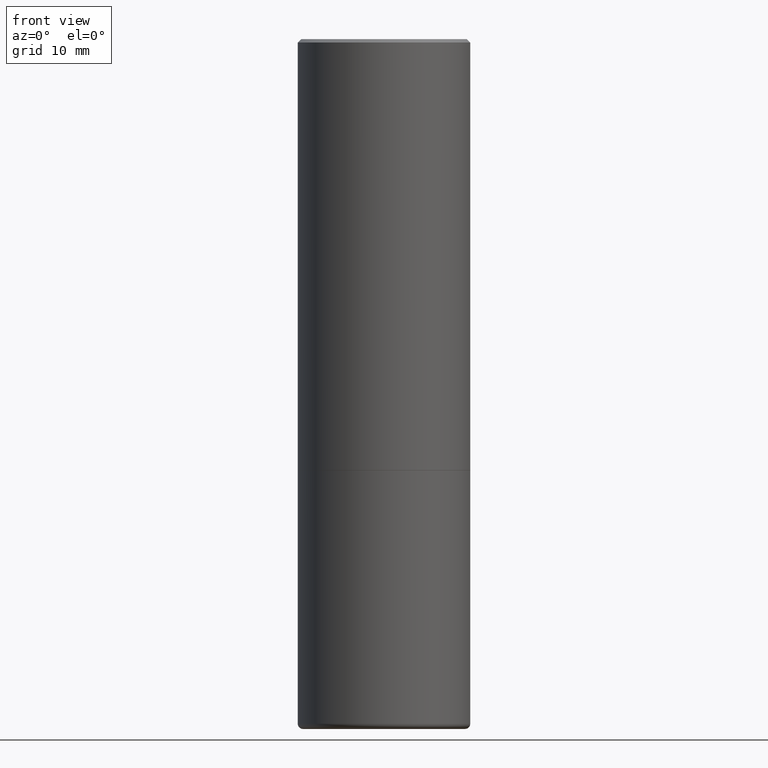
[diagram: clean part render]
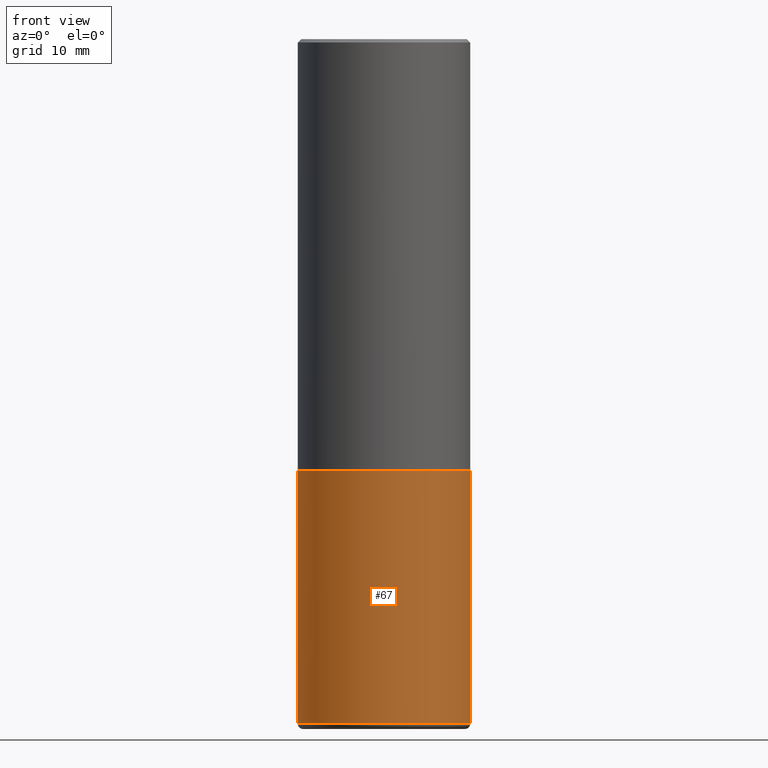
[diagram: same view with one face highlighted and labeled with its STEP entity id]
A machine part, front view. The second image highlights one B-rep face of the part: STEP entity #67.
In plain terms, the highlighted cylindrical surface (partial cylindrical patch) has radius 12.7 mm, axis along (-0, 0, 1).
Its self-contained STEP definition (entity closure, byte-faithful):
#14 = DIRECTION ( 'NONE',  ( -2.445468806185136597E-29, 3.491481338843145583E-15, 1.000000000000000000 ) ) ;
#20 = EDGE_CURVE ( 'NONE', #441, #374, #270, .T. ) ;
#40 = AXIS2_PLACEMENT_3D ( 'NONE', #65, #308, #78 ) ;
#45 = VERTEX_POINT ( 'NONE', #98 ) ;
#65 = CARTESIAN_POINT ( 'NONE',  ( 6.113672015462842613E-29, -8.728703347107864943E-15, -2.500000000000000000 ) ) ;
#67 = ADVANCED_FACE ( 'NONE', ( #296 ), #121, .T. ) ;
#78 = DIRECTION ( 'NONE',  ( 1.000000000000000000, -6.982962677686269077E-15, 0.000000000000000000 ) ) ;
#82 = CIRCLE ( 'NONE', #302, 0.5000000000000000000 ) ;
#97 = ORIENTED_EDGE ( 'NONE', *, *, #287, .T. ) ;
#98 = CARTESIAN_POINT ( 'NONE',  ( -0.5000000000000000000, -1.030846723640678645E-14, -3.970000000000000195 ) ) ;
#104 = CARTESIAN_POINT ( 'NONE',  ( -0.5000000000000000000, 3.552713678800500929E-15, -2.459467545127452891E-29 ) ) ;
#107 = DIRECTION ( 'NONE',  ( -2.445468806185136877E-29, 3.491481338843145188E-15, 1.000000000000000000 ) ) ;
#121 = CYLINDRICAL_SURFACE ( 'NONE', #179, 0.5000000000000000000 ) ;
#141 = LINE ( 'NONE', #349, #388 ) ;
#179 = AXIS2_PLACEMENT_3D ( 'NONE', #427, #14, #194 ) ;
#188 = ORIENTED_EDGE ( 'NONE', *, *, #371, .F. ) ;
#192 = VERTEX_POINT ( 'NONE', #391 ) ;
#194 = DIRECTION ( 'NONE',  ( 1.000000000000000000, -6.982962677686266711E-15, 4.876176775795935793E-29 ) ) ;
#219 = ORIENTED_EDGE ( 'NONE', *, *, #20, .F. ) ;
#241 = DIRECTION ( 'NONE',  ( -2.445468806185136877E-29, 3.491481338843145188E-15, 1.000000000000000000 ) ) ;
#245 = VECTOR ( 'NONE', #241, 39.37007874015748143 ) ;
#270 = CIRCLE ( 'NONE', #40, 0.5000000000000000000 ) ;
#277 = DIRECTION ( 'NONE',  ( 1.000000000000000000, -6.982962677686266711E-15, 0.000000000000000000 ) ) ;
#279 = EDGE_CURVE ( 'NONE', #45, #192, #82, .T. ) ;
#284 = CARTESIAN_POINT ( 'NONE',  ( -0.5000000000000000000, -7.742228452357075234E-15, -2.500000000000000000 ) ) ;
#287 = EDGE_CURVE ( 'NONE', #192, #374, #141, .T. ) ;
#296 = FACE_OUTER_BOUND ( 'NONE', #421, .T. ) ;
#302 = AXIS2_PLACEMENT_3D ( 'NONE', #414, #345, #277 ) ;
#308 = DIRECTION ( 'NONE',  ( -2.445468806185136597E-29, 3.491481338843145583E-15, 1.000000000000000000 ) ) ;
#345 = DIRECTION ( 'NONE',  ( -2.445468806185136597E-29, 3.491481338843145583E-15, 1.000000000000000000 ) ) ;
#349 = CARTESIAN_POINT ( 'NONE',  ( 0.5000000000000000000, -3.491481338843133355E-15, 2.438088387897967896E-29 ) ) ;
#358 = ORIENTED_EDGE ( 'NONE', *, *, #279, .T. ) ;
#371 = EDGE_CURVE ( 'NONE', #45, #441, #407, .T. ) ;
#374 = VERTEX_POINT ( 'NONE', #377 ) ;
#377 = CARTESIAN_POINT ( 'NONE',  ( 0.5000000000000000000, -1.222018468595099830E-14, -2.500000000000000000 ) ) ;
#388 = VECTOR ( 'NONE', #107, 39.37007874015748143 ) ;
#391 = CARTESIAN_POINT ( 'NONE',  ( 0.5000000000000000000, -1.735266225405042074E-14, -3.970000000000000195 ) ) ;
#407 = LINE ( 'NONE', #104, #245 ) ;
#414 = CARTESIAN_POINT ( 'NONE',  ( 9.708511160554992872E-29, -1.386118091520728738E-14, -3.970000000000000195 ) ) ;
#421 = EDGE_LOOP ( 'NONE', ( #188, #358, #97, #219 ) ) ;
#427 = CARTESIAN_POINT ( 'NONE',  ( 0.000000000000000000, 0.000000000000000000, 0.000000000000000000 ) ) ;
#441 = VERTEX_POINT ( 'NONE', #284 ) ;